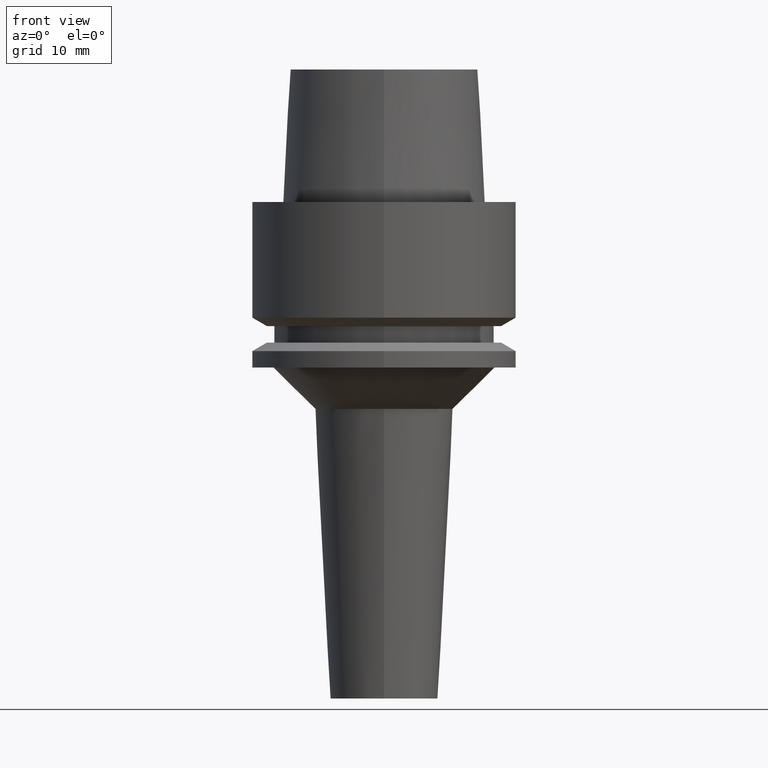
[diagram: clean part render]
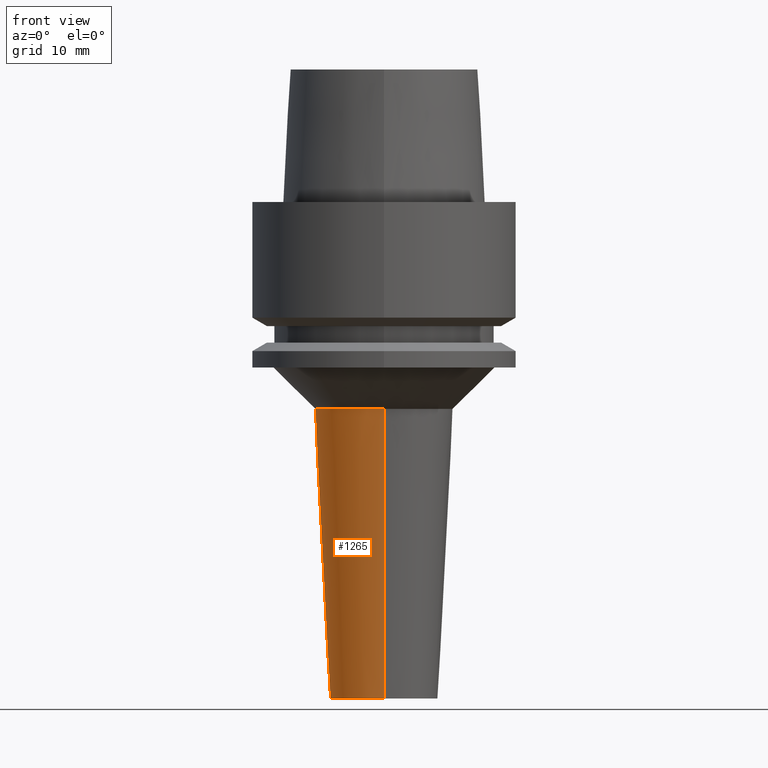
[diagram: same view with one face highlighted and labeled with its STEP entity id]
A machine part, front view. The second image highlights one B-rep face of the part: STEP entity #1265.
In plain terms, the highlighted conical surface has half-angle 3 deg.
Its self-contained STEP definition (entity closure, byte-faithful):
#422=CARTESIAN_POINT('',(0.E0,0.E0,-6.E1));
#423=DIRECTION('',(0.E0,0.E0,1.E0));
#424=DIRECTION('',(0.E0,1.E0,0.E0));
#425=AXIS2_PLACEMENT_3D('',#422,#423,#424);
#446=DIRECTION('',(0.E0,-5.233595624297E-2,-9.986295347546E-1));
#447=VECTOR('',#446,3.504803210993E1);
#448=CARTESIAN_POINT('',(0.E0,8.334272274907E0,-2.5E1));
#449=LINE('',#448,#447);
#461=DIRECTION('',(0.E0,5.233595624297E-2,-9.986295347546E-1));
#462=VECTOR('',#461,3.504803210993E1);
#463=CARTESIAN_POINT('',(0.E0,-8.334272274907E0,-2.5E1));
#464=LINE('',#463,#462);
#475=CARTESIAN_POINT('',(0.E0,0.E0,-2.5E1));
#476=DIRECTION('',(0.E0,0.E0,-1.E0));
#477=DIRECTION('',(0.E0,-1.E0,0.E0));
#478=AXIS2_PLACEMENT_3D('',#475,#476,#477);
#788=CARTESIAN_POINT('',(0.E0,-6.5E0,-6.E1));
#789=CARTESIAN_POINT('',(0.E0,6.5E0,-6.E1));
#790=VERTEX_POINT('',#788);
#791=VERTEX_POINT('',#789);
#792=CARTESIAN_POINT('',(0.E0,8.334272274907E0,-2.5E1));
#793=VERTEX_POINT('',#792);
#794=CARTESIAN_POINT('',(0.E0,-8.334272274907E0,-2.5E1));
#795=VERTEX_POINT('',#794);
#1253=CARTESIAN_POINT('',(0.E0,0.E0,-4.25E1));
#1254=DIRECTION('',(0.E0,0.E0,1.E0));
#1255=DIRECTION('',(0.E0,1.E0,0.E0));
#1256=AXIS2_PLACEMENT_3D('',#1253,#1254,#1255);
#1257=CONICAL_SURFACE('',#1256,7.417136137453E0,3.E0);
#1258=ORIENTED_EDGE('',*,*,#1243,.F.);
#1260=ORIENTED_EDGE('',*,*,#1259,.F.);
#1261=ORIENTED_EDGE('',*,*,#1246,.T.);
#1262=ORIENTED_EDGE('',*,*,#1229,.F.);
#1263=EDGE_LOOP('',(#1258,#1260,#1261,#1262));
#1264=FACE_OUTER_BOUND('',#1263,.F.);
#426=CIRCLE('',#425,6.5E0);
#479=CIRCLE('',#478,8.334272274908E0);
#1229=EDGE_CURVE('',#791,#790,#426,.T.);
#1243=EDGE_CURVE('',#793,#791,#449,.T.);
#1246=EDGE_CURVE('',#795,#790,#464,.T.);
#1259=EDGE_CURVE('',#795,#793,#479,.T.);
#1265=ADVANCED_FACE('',(#1264),#1257,.T.);